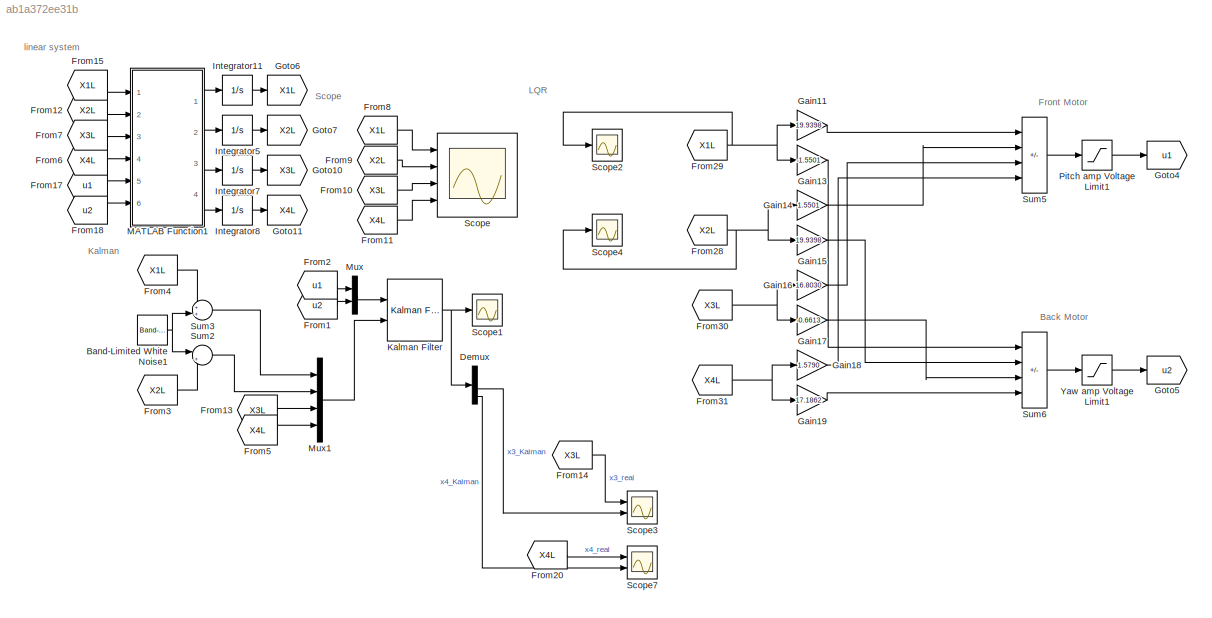
MODEL slx_ab1a372ee31b
KIND model
CONFIG AbsTol = auto
CONFIG EnableMultiTasking = off
CONFIG FixedStep = auto
CONFIG InitFcn = % NOTE: If using VoltPAQ-X1, make sure both Gain switches are set to 3.\nK_AMP = 3;\n% Maximum Output Voltage (V): YAW limited to 15 V. PITCH limited to 24 V.\nVMAX_AMP_P = 24;\nVMAX_AMP_Y = 15;\n% Initial Angle of Pitch (rad)\ntheta_0 = -40.5*pi/180;\n\ng = 9.81;\n\n% Pitch and Yaw Motor Armature Resistance (Ohm)\nR_m_p = 0.83;\nR_m_y = 1.60;\n\n% Pitch and Yaw Motor Current-Torque Constant (N.m/A)\nK_t_p = 0.0...<+2717ch>
CONFIG MaxStep = auto
CONFIG MinStep = auto
CONFIG RelTol = 1e-3
CONFIG SampleTimeConstraint = Unconstrained
CONFIG Solver = VariableStepAuto
CONFIG SolverName = VariableStepAuto
CONFIG StartTime = 0.0
CONFIG StopTime = 10
BLOCK [Reference] Band-Limited White Noise1  REF=simulink/Sources/Band-Limited
White Noise
  Ports = [0, 1]
  SourceBlock = simulink/Sources/Band-Limited\nWhite Noise
  SourceProductBaseCode = SL
  SourceType = Band-Limited White Noise.
BLOCK [Demux] Demux
  Ports = [1, 4]
BLOCK [From] From1
  GotoTag = u2
BLOCK [From] From10
  GotoTag = X3L
BLOCK [From] From11
  GotoTag = X4L
BLOCK [From] From12
  GotoTag = X2L
BLOCK [From] From13
  GotoTag = X3L
BLOCK [From] From14
  GotoTag = X3L
BLOCK [From] From15
  GotoTag = X1L
BLOCK [From] From17
  GotoTag = u1
BLOCK [From] From18
  GotoTag = u2
BLOCK [From] From2
  GotoTag = u1
BLOCK [From] From20
  GotoTag = X4L
BLOCK [From] From28
  GotoTag = X2L
BLOCK [From] From29
  GotoTag = X1L
BLOCK [From] From3
  GotoTag = X2L
BLOCK [From] From30
  GotoTag = X3L
BLOCK [From] From31
  GotoTag = X4L
BLOCK [From] From4
  GotoTag = X1L
BLOCK [From] From5
  GotoTag = X4L
BLOCK [From] From6
  GotoTag = X4L
BLOCK [From] From7
  GotoTag = X3L
BLOCK [From] From8
  GotoTag = X1L
BLOCK [From] From9
  GotoTag = X2L
BLOCK [Gain] Gain11
  Gain = 19.9398
BLOCK [Gain] Gain13
  Gain = -1.5501
BLOCK [Gain] Gain14
  Gain = 1.5501
BLOCK [Gain] Gain15
  Gain = 19.9398
BLOCK [Gain] Gain16
  Gain = 16.8030
BLOCK [Gain] Gain17
  Gain = -0.6613
BLOCK [Gain] Gain18
  Gain = 1.5790
BLOCK [Gain] Gain19
  Gain = 17.1862
BLOCK [Goto] Goto10
  GotoTag = X3L
BLOCK [Goto] Goto11
  GotoTag = X4L
BLOCK [Goto] Goto4
  GotoTag = u1
BLOCK [Goto] Goto5
  GotoTag = u2
BLOCK [Goto] Goto6
  GotoTag = X1L
BLOCK [Goto] Goto7
  GotoTag = X2L
BLOCK [Integrator] Integrator11
  LowerSaturationLimit = -40.5*pi/180
  Ports = [1, 1]
  UpperSaturationLimit = 40.5*pi/180
BLOCK [Integrator] Integrator5
  InitialCondition = 10*pi/180
  Ports = [1, 1]
BLOCK [Integrator] Integrator7
  Ports = [1, 1]
BLOCK [Integrator] Integrator8
  Ports = [1, 1]
BLOCK [Reference] Kalman Filter  REF=ctrlSharedLib/Kalman Filter
  Ports = [2, 1]
  SourceBlock = ctrlSharedLib/Kalman Filter
  SourceProductBaseCode = CT,ID
  SourceType = ctrlKalmanFilter
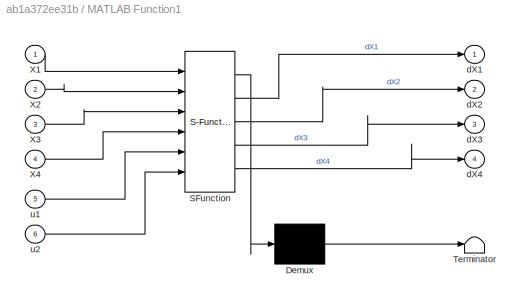
BLOCK [SubSystem] MATLAB Function1
  ErrorFcn = Stateflow.Translate.translate
  PermitHierarchicalResolution = ExplicitOnly
  Ports = [6, 4]
  RequestExecContextInheritance = off
  SFBlockType = MATLAB Function
  TreatAsAtomicUnit = on
BLOCK [Demux] MATLAB Function1/ Demux 
  Outputs = 1
  Ports = [1, 1]
BLOCK [S-Function] MATLAB Function1/ SFunction 
  EnableBusSupport = on
  FunctionName = sf_sfun
  PortCounts = [6 5]
  Ports = [6, 5]
  SFcnIsStateOwnerBlock = off
  SFunctionDeploymentMode = off
  Tag = Stateflow S-Function Kalman_observer 1
BLOCK [Terminator] MATLAB Function1/ Terminator 
BLOCK [Inport] MATLAB Function1/X1
BLOCK [Inport] MATLAB Function1/X2
  Port = 2
BLOCK [Inport] MATLAB Function1/X3
  Port = 3
BLOCK [Inport] MATLAB Function1/X4
  Port = 4
BLOCK [Outport] MATLAB Function1/dX1
BLOCK [Outport] MATLAB Function1/dX2
  Port = 2
BLOCK [Outport] MATLAB Function1/dX3
  Port = 3
BLOCK [Outport] MATLAB Function1/dX4
  Port = 4
BLOCK [Inport] MATLAB Function1/u1
  Port = 5
BLOCK [Inport] MATLAB Function1/u2
  Port = 6
BLOCK [Mux] Mux
  DisplayOption = bar
  Inputs = 2
  Ports = [2, 1]
BLOCK [Mux] Mux1
  DisplayOption = bar
  Ports = [4, 1]
BLOCK [Saturate] Pitch amp Voltage Limit1
  LowerLimit = - VMAX_AMP_P
  UpperLimit = VMAX_AMP_P
BLOCK [Scope] Scope
  Floating = off
  NumInputPorts = 4
  Ports = [4]
  ScopeSpecificationString = Simulink.scopes.TimeScopeBlockCfg('CurrentConfiguration', extmgr.ConfigurationSet(extmgr.Configuration('Core','General UI',true),extmgr.Configuration('Core','Source UI',true),extmgr.Configuration('Sources','WiredSimulink',true,'DataLoggingVariableName','ScopeData1'),extmgr.Configuration('Visuals','Time Domain',true,'SerializedDisplays',{struct('MinYLimReal','-0.18161','MaxYLimReal','0.2141','YLabe...<+1442ch>
BLOCK [Scope] Scope1
  Floating = off
  NumInputPorts = 1
  Ports = [1]
  ScopeSpecificationString = Simulink.scopes.TimeScopeBlockCfg('CurrentConfiguration', extmgr.ConfigurationSet(extmgr.Configuration('Core','General UI',true),extmgr.Configuration('Core','Source UI',true),extmgr.Configuration('Sources','WiredSimulink',true),extmgr.Configuration('Visuals','Time Domain',true),extmgr.Configuration('Tools','Plot Navigation',true),extmgr.Configuration('Tools','Measurements',true)),'Version','2022a'...<+1ch>
BLOCK [Scope] Scope2
  Floating = off
  NumInputPorts = 1
  Ports = [1]
  ScopeSpecificationString = Simulink.scopes.TimeScopeBlockCfg('CurrentConfiguration', extmgr.ConfigurationSet(extmgr.Configuration('Core','General UI',true),extmgr.Configuration('Core','Source UI',true),extmgr.Configuration('Sources','WiredSimulink',true,'DataLoggingVariableName','ScopeData3'),extmgr.Configuration('Visuals','Time Domain',true,'SerializedDisplays',{struct('MinYLimReal','-0.02428','MaxYLimReal','0.21855','YLab...<+1371ch>
BLOCK [Scope] Scope3
  Floating = off
  NumInputPorts = 2
  Ports = [2]
  ScopeSpecificationString = Simulink.scopes.TimeScopeBlockCfg('CurrentConfiguration', extmgr.ConfigurationSet(extmgr.Configuration('Core','General UI',true,'FigureColor',[1 1 1]),extmgr.Configuration('Core','Source UI',true),extmgr.Configuration('Sources','WiredSimulink',true,'DataLoggingVariableName','ScopeData2'),extmgr.Configuration('Visuals','Time Domain',true,'SerializedDisplays',{struct('MinYLimReal','-0.01219','MaxYLi...<+1662ch>
BLOCK [Scope] Scope4
  Floating = off
  NumInputPorts = 1
  Ports = [1]
  ScopeSpecificationString = Simulink.scopes.TimeScopeBlockCfg('CurrentConfiguration', extmgr.ConfigurationSet(extmgr.Configuration('Core','General UI',true),extmgr.Configuration('Core','Source UI',true),extmgr.Configuration('Sources','WiredSimulink',true,'DataLoggingVariableName','ScopeData5'),extmgr.Configuration('Visuals','Time Domain',true,'SerializedDisplays',{struct('MinYLimReal','-0.04266','MaxYLimReal','0.00474','YLab...<+1370ch>
BLOCK [Scope] Scope7
  Floating = off
  NumInputPorts = 2
  Ports = [2]
  ScopeSpecificationString = Simulink.scopes.TimeScopeBlockCfg('CurrentConfiguration', extmgr.ConfigurationSet(extmgr.Configuration('Core','General UI',true,'FigureColor',[1 1 1]),extmgr.Configuration('Core','Source UI',true),extmgr.Configuration('Sources','WiredSimulink',true,'DataLoggingVariableName','ScopeData3'),extmgr.Configuration('Visuals','Time Domain',true,'SerializedDisplays',{struct('MinYLimReal','-0.15992','MaxYLi...<+1697ch>
BLOCK [Sum] Sum2
  Inputs = |++
  Ports = [2, 1]
BLOCK [Sum] Sum3
  Inputs = ++|
  Ports = [2, 1]
BLOCK [Sum] Sum5
  IconShape = rectangular
  Inputs = ----
  Ports = [4, 1]
BLOCK [Sum] Sum6
  IconShape = rectangular
  Inputs = ----
  Ports = [4, 1]
BLOCK [Saturate] Yaw amp Voltage Limit1
  LowerLimit = - VMAX_AMP_Y
  UpperLimit = VMAX_AMP_Y
ANNOTATION (root): Back Motor
ANNOTATION (root): Front Motor
ANNOTATION (root): Kalman
ANNOTATION (root): LQR
ANNOTATION (root): Scope
ANNOTATION (root): linear system
NET Band-Limited White Noise1:1 -> Sum2:1, Sum3:2
LINE Demux:3 -> Scope3:2
LINE Demux:4 -> Scope7:2
LINE From10:1 -> Scope:3
LINE From11:1 -> Scope:4
LINE From12:1 -> MATLAB Function1:2
LINE From13:1 -> Mux1:3
LINE From14:1 -> Scope3:1
LINE From15:1 -> MATLAB Function1:1
LINE From17:1 -> MATLAB Function1:5
LINE From18:1 -> MATLAB Function1:6
LINE From1:1 -> Mux:2
LINE From20:1 -> Scope7:1
NET From28:1 -> Gain14:1, Gain15:1, Scope4:1
NET From29:1 -> Gain11:1, Gain13:1, Scope2:1
LINE From2:1 -> Mux:1
NET From30:1 -> Gain16:1, Gain17:1
NET From31:1 -> Gain18:1, Gain19:1
LINE From3:1 -> Sum2:2
LINE From4:1 -> Sum3:1
LINE From5:1 -> Mux1:4
LINE From6:1 -> MATLAB Function1:4
LINE From7:1 -> MATLAB Function1:3
LINE From8:1 -> Scope:1
LINE From9:1 -> Scope:2
LINE Gain11:1 -> Sum5:1
LINE Gain13:1 -> Sum6:1
LINE Gain14:1 -> Sum5:2
LINE Gain15:1 -> Sum6:2
LINE Gain16:1 -> Sum5:3
LINE Gain17:1 -> Sum6:3
LINE Gain18:1 -> Sum5:4
LINE Gain19:1 -> Sum6:4
LINE Integrator11:1 -> Goto6:1
LINE Integrator5:1 -> Goto7:1
LINE Integrator7:1 -> Goto10:1
LINE Integrator8:1 -> Goto11:1
NET Kalman Filter:1 -> Demux:1, Scope1:1
LINE MATLAB Function1:1 -> Integrator11:1
LINE MATLAB Function1:2 -> Integrator5:1
LINE MATLAB Function1:3 -> Integrator7:1
LINE MATLAB Function1:4 -> Integrator8:1
LINE Mux1:1 -> Kalman Filter:2
LINE Mux:1 -> Kalman Filter:1
LINE Pitch amp Voltage Limit1:1 -> Goto4:1
LINE Sum2:1 -> Mux1:2
LINE Sum3:1 -> Mux1:1
LINE Sum5:1 -> Pitch amp Voltage Limit1:1
LINE Sum6:1 -> Yaw amp Voltage Limit1:1
LINE Yaw amp Voltage Limit1:1 -> Goto5:1
note: NET lines group one-source signal fan-out (src -> all destinations, sorted); 1:1 wires keep LINE
CHART MATLAB Function1 states=1 transitions=1
  STATE_LABEL 'eML_blk_kernel()'
  STATE_LABEL "SCRIPT:\nfunction [dX1,dX2,dX3,dX4] = Linear(X1,X2,X3,X4,u1,u2)\n%#codegen\n\nA=[      0         0    1.0000         0\n         0         0         0    1.0000\n         0         0   -9.2751         0\n         0         0         0   -3.4955];\n     \nB=[      0         0\n         0         0\n    2.3667    0.0790\n    0.2410    0.7913];\n\nX = [X1;X2;X3;X4];\nU=[u1,u2].';\ndX = A*X+B*U;\ndX1 = dX(1);\ndX2 = dX...<+31ch>"
